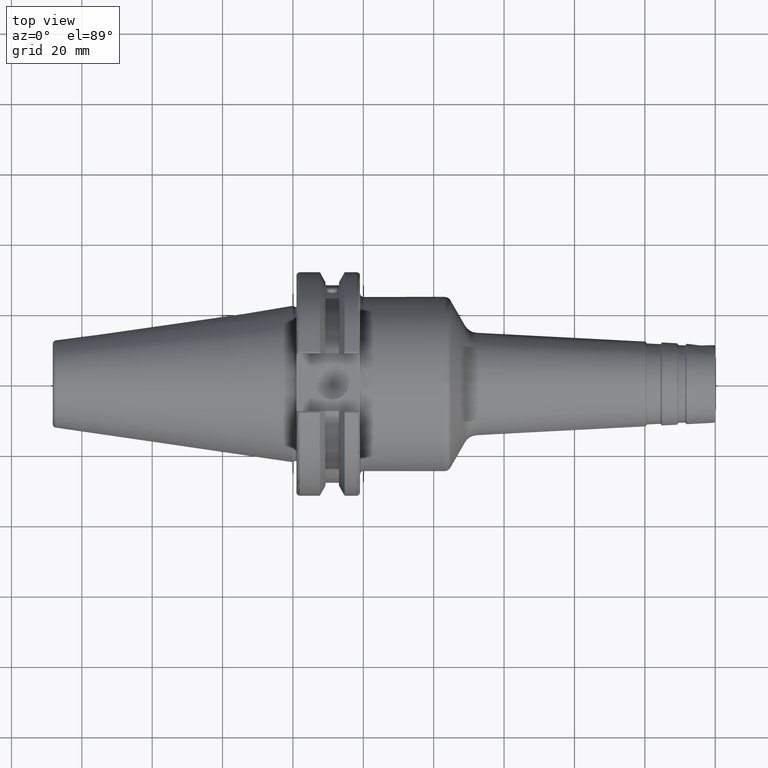
[diagram: clean part render]
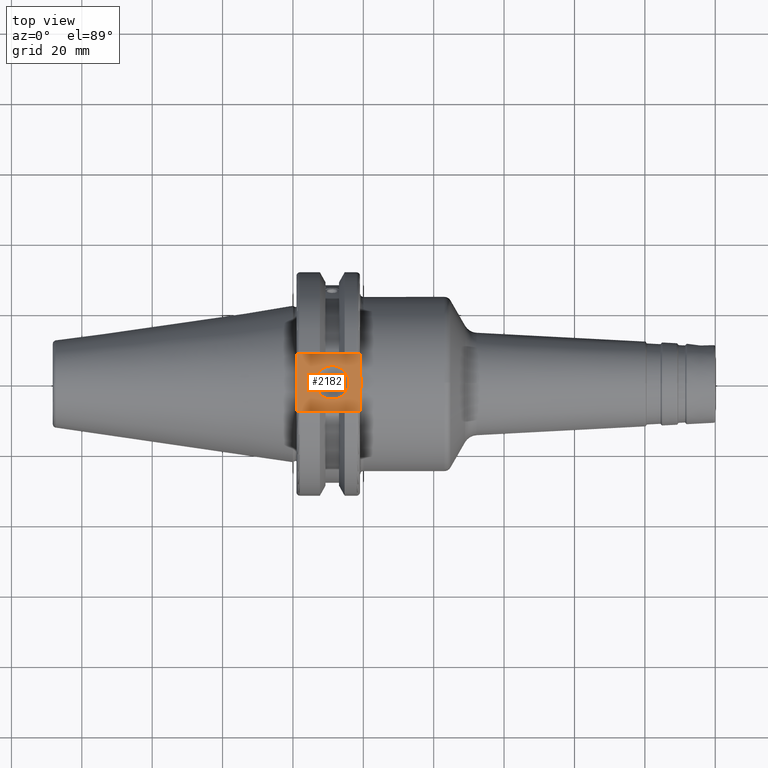
[diagram: same view with one face highlighted and labeled with its STEP entity id]
A machine part, top view. The second image highlights one B-rep face of the part: STEP entity #2182.
In plain terms, the highlighted planar face has unit normal (0, 0, 1).
Its self-contained STEP definition (entity closure, byte-faithful):
#82=B_SPLINE_CURVE_WITH_KNOTS('',3,(#3382,#3383,#3384,#3385,#3386,#3387,
#3388,#3389,#3390,#3391),.UNSPECIFIED.,.F.,.F.,(4,2,2,2,4),(1.28229186042809,
1.47392183654147,1.862003561099,2.25008528565653,2.44171526176991),
 .UNSPECIFIED.);
#130=FACE_BOUND('',#597,.T.);
#163=PLANE('',#2489);
#177=LINE('',#3423,#272);
#193=LINE('',#3610,#288);
#228=LINE('',#4032,#323);
#230=LINE('',#4075,#325);
#241=LINE('',#4137,#336);
#272=VECTOR('',#2715,10.);
#288=VECTOR('',#2821,10.);
#323=VECTOR('',#3024,10.);
#325=VECTOR('',#3034,10.);
#336=VECTOR('',#3055,10.);
#476=FACE_OUTER_BOUND('',#596,.T.);
#596=EDGE_LOOP('',(#1995,#1996,#1997,#1998,#1999,#2000));
#597=EDGE_LOOP('',(#2001,#2002));
#769=CIRCLE('',#2479,4.7625);
#770=CIRCLE('',#2480,4.7625);
#849=VERTEX_POINT('',#3380);
#850=VERTEX_POINT('',#3381);
#856=VERTEX_POINT('',#3422);
#892=VERTEX_POINT('',#3608);
#978=VERTEX_POINT('',#4030);
#984=VERTEX_POINT('',#4074);
#1020=VERTEX_POINT('',#4243);
#1021=VERTEX_POINT('',#4244);
#1111=EDGE_CURVE('',#849,#850,#82,.F.);
#1118=EDGE_CURVE('',#849,#856,#177,.T.);
#1169=EDGE_CURVE('',#892,#850,#193,.T.);
#1284=EDGE_CURVE('',#892,#978,#228,.T.);
#1292=EDGE_CURVE('',#984,#856,#230,.T.);
#1311=EDGE_CURVE('',#984,#978,#241,.T.);
#1350=EDGE_CURVE('',#1020,#1021,#769,.T.);
#1351=EDGE_CURVE('',#1021,#1020,#770,.T.);
#1995=ORIENTED_EDGE('',*,*,#1169,.F.);
#1996=ORIENTED_EDGE('',*,*,#1284,.T.);
#1997=ORIENTED_EDGE('',*,*,#1311,.F.);
#1998=ORIENTED_EDGE('',*,*,#1292,.T.);
#1999=ORIENTED_EDGE('',*,*,#1118,.F.);
#2000=ORIENTED_EDGE('',*,*,#1111,.T.);
#2001=ORIENTED_EDGE('',*,*,#1350,.T.);
#2002=ORIENTED_EDGE('',*,*,#1351,.T.);
#2182=ADVANCED_FACE('',(#476,#130),#163,.T.);
#2479=AXIS2_PLACEMENT_3D('',#4245,#3137,#3138);
#2480=AXIS2_PLACEMENT_3D('',#4246,#3139,#3140);
#2489=AXIS2_PLACEMENT_3D('',#4265,#3159,#3160);
#2715=DIRECTION('',(0.,-1.,0.));
#2821=DIRECTION('',(0.,-1.,0.));
#3024=DIRECTION('',(-1.,0.,0.));
#3034=DIRECTION('',(1.,-1.16558847729675E-16,0.));
#3055=DIRECTION('',(0.,1.,0.));
#3137=DIRECTION('center_axis',(0.,0.,-1.));
#3138=DIRECTION('ref_axis',(1.,0.,0.));
#3139=DIRECTION('center_axis',(0.,0.,-1.));
#3140=DIRECTION('ref_axis',(1.,0.,0.));
#3159=DIRECTION('center_axis',(0.,0.,1.));
#3160=DIRECTION('ref_axis',(1.,0.,0.));
#3380=CARTESIAN_POINT('',(19.05,-6.16948133962652,25.));
#3381=CARTESIAN_POINT('',(19.05,6.16948133962652,25.));
#3382=CARTESIAN_POINT('Ctrl Pts',(19.05,6.16948133962652,25.));
#3383=CARTESIAN_POINT('Ctrl Pts',(19.05,5.53071475258193,25.));
#3384=CARTESIAN_POINT('Ctrl Pts',(19.0917093675371,4.76533047486055,25.));
#3385=CARTESIAN_POINT('Ctrl Pts',(19.2334466867335,2.83816328553263,25.));
#3386=CARTESIAN_POINT('Ctrl Pts',(19.3885621722339,1.29360574852511,25.));
#3387=CARTESIAN_POINT('Ctrl Pts',(19.3885621722339,-1.29360574852511,25.));
#3388=CARTESIAN_POINT('Ctrl Pts',(19.2334466867335,-2.83816328553263,25.));
#3389=CARTESIAN_POINT('Ctrl Pts',(19.0917093675371,-4.76533047486055,25.));
#3390=CARTESIAN_POINT('Ctrl Pts',(19.05,-5.53071475258193,25.));
#3391=CARTESIAN_POINT('Ctrl Pts',(19.05,-6.16948133962652,25.));
#3422=CARTESIAN_POINT('',(19.05,-8.19,25.));
#3423=CARTESIAN_POINT('',(19.05,0.,25.));
#3608=CARTESIAN_POINT('',(19.05,8.19,25.));
#3610=CARTESIAN_POINT('',(19.05,0.,25.));
#4030=CARTESIAN_POINT('',(1.,8.19,25.));
#4032=CARTESIAN_POINT('',(20.05,8.19,25.));
#4074=CARTESIAN_POINT('',(1.,-8.19,25.));
#4075=CARTESIAN_POINT('',(1.,-8.19,25.));
#4137=CARTESIAN_POINT('',(1.,15.875,25.));
#4243=CARTESIAN_POINT('',(15.9385,0.,25.));
#4244=CARTESIAN_POINT('',(6.4135,-5.83238038093927E-16,25.));
#4245=CARTESIAN_POINT('Origin',(11.176,0.,25.));
#4246=CARTESIAN_POINT('Origin',(11.176,0.,25.));
#4265=CARTESIAN_POINT('Origin',(14.62,0.,25.));